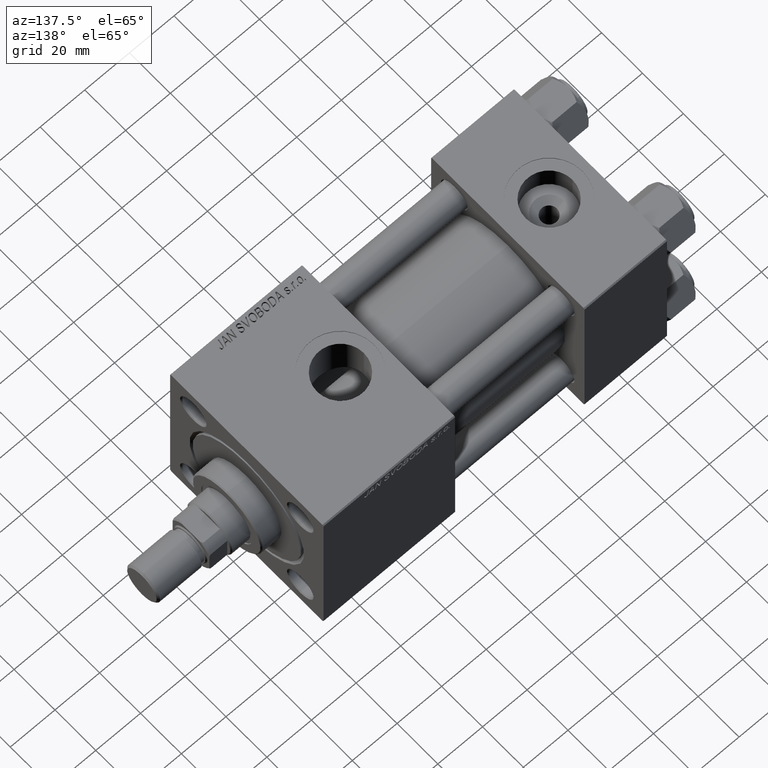
[diagram: clean part render]
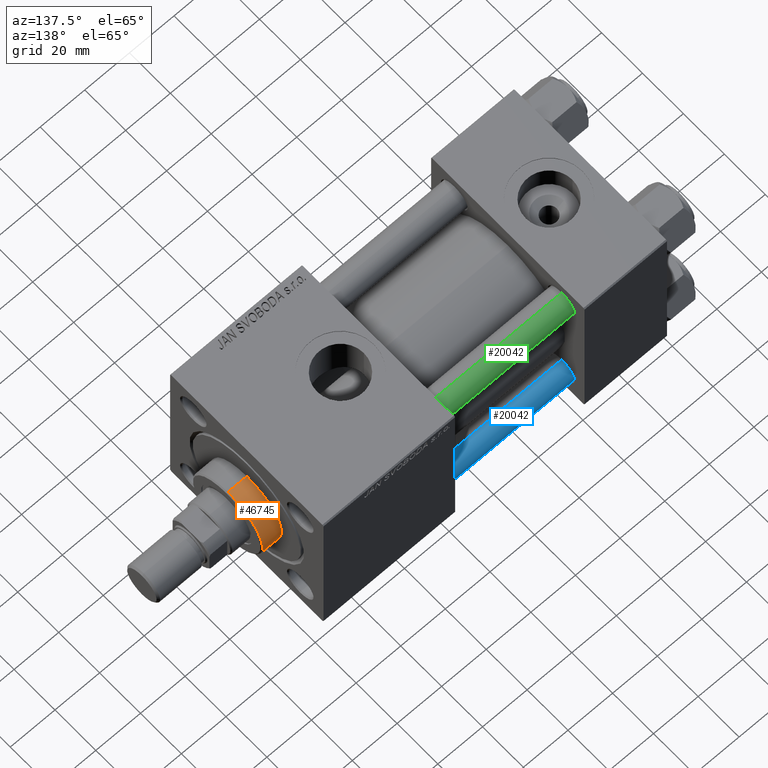
[diagram: same view with three faces highlighted in distinct colors, each labeled with its STEP entity id]
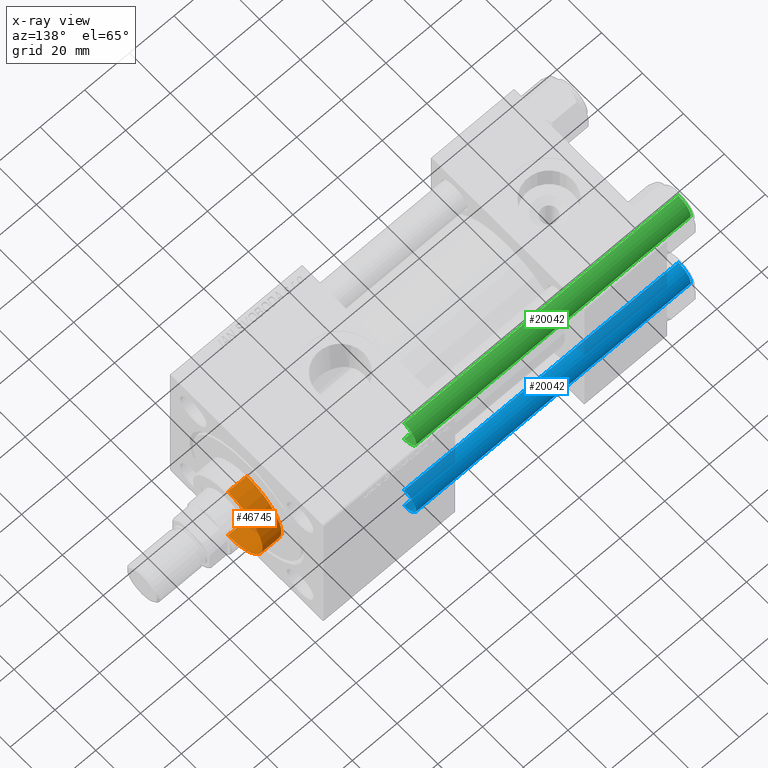
[diagram: x-ray of the same camera — body ghosted, the three highlighted faces saturated]
A machine part, auxiliary view with three faces highlighted in distinct colors.
The next image is the same camera in x-ray (body ghosted, the three faces saturated) — at least one of them is partly hidden behind the body in this view.
Their STEP definitions:

[orange] entity #46745 — the highlighted cylindrical surface (partial cylindrical patch) has radius 17 mm, axis along (-1, -0, 0).
#105 = ORIENTED_EDGE ( 'NONE', *, *, #29137, .T. ) ;
#569 = DIRECTION ( 'NONE',  ( 1.000000000000000000, 0.000000000000000000, 0.000000000000000000 ) ) ;
#750 = DIRECTION ( 'NONE',  ( -0.000000000000000000, -0.000000000000000000, -1.000000000000000000 ) ) ;
#1244 = DIRECTION ( 'NONE',  ( 1.000000000000000000, 0.000000000000000000, 0.000000000000000000 ) ) ;
#5039 = CIRCLE ( 'NONE', #16495, 17.00000000000000000 ) ;
#6780 = VERTEX_POINT ( 'NONE', #26165 ) ;
#8702 = CYLINDRICAL_SURFACE ( 'NONE', #29199, 17.00000000000000000 ) ;
#9458 = DIRECTION ( 'NONE',  ( 0.000000000000000000, 0.000000000000000000, 1.000000000000000000 ) ) ;
#13942 = EDGE_CURVE ( 'NONE', #19652, #38908, #35122, .T. ) ;
#14269 = CARTESIAN_POINT ( 'NONE',  ( 17.00000000000000000, 2.081899558550500280E-15, 28.69999999999999929 ) ) ;
#14761 = CARTESIAN_POINT ( 'NONE',  ( 17.00000000000000000, 2.081899558550500280E-15, 37.69999999999999574 ) ) ;
#16495 = AXIS2_PLACEMENT_3D ( 'NONE', #44518, #9458, #569 ) ;
#16646 = DIRECTION ( 'NONE',  ( 0.000000000000000000, 0.000000000000000000, -1.000000000000000000 ) ) ;
#19652 = VERTEX_POINT ( 'NONE', #46219 ) ;
#20243 = CARTESIAN_POINT ( 'NONE',  ( 0.000000000000000000, 0.000000000000000000, 37.19999999999999574 ) ) ;
#24604 = ORIENTED_EDGE ( 'NONE', *, *, #41470, .T. ) ;
#24819 = DIRECTION ( 'NONE',  ( -1.000000000000000000, 0.000000000000000000, 0.000000000000000000 ) ) ;
#25698 = ORIENTED_EDGE ( 'NONE', *, *, #29779, .F. ) ;
#26165 = CARTESIAN_POINT ( 'NONE',  ( -17.00000000000000000, 0.000000000000000000, 28.69999999999999929 ) ) ;
#29034 = CARTESIAN_POINT ( 'NONE',  ( -17.00000000000000000, 0.000000000000000000, 37.69999999999999574 ) ) ;
#29137 = EDGE_CURVE ( 'NONE', #49832, #6780, #5039, .T. ) ;
#29199 = AXIS2_PLACEMENT_3D ( 'NONE', #44018, #750, #24819 ) ;
#29779 = EDGE_CURVE ( 'NONE', #19652, #6780, #47760, .T. ) ;
#30203 = AXIS2_PLACEMENT_3D ( 'NONE', #20243, #16646, #1244 ) ;
#30681 = VECTOR ( 'NONE', #50624, 1000.000000000000000 ) ;
#30850 = EDGE_LOOP ( 'NONE', ( #45248, #24604, #105, #25698 ) ) ;
#32040 = VECTOR ( 'NONE', #40820, 1000.000000000000000 ) ;
#35122 = CIRCLE ( 'NONE', #30203, 17.00000000000000000 ) ;
#35475 = CARTESIAN_POINT ( 'NONE',  ( 17.00000000000000000, 2.081899558550500280E-15, 37.19999999999999574 ) ) ;
#38908 = VERTEX_POINT ( 'NONE', #35475 ) ;
#39690 = FACE_OUTER_BOUND ( 'NONE', #30850, .T. ) ;
#40820 = DIRECTION ( 'NONE',  ( -0.000000000000000000, -0.000000000000000000, -1.000000000000000000 ) ) ;
#41470 = EDGE_CURVE ( 'NONE', #38908, #49832, #49833, .T. ) ;
#44018 = CARTESIAN_POINT ( 'NONE',  ( 0.000000000000000000, 0.000000000000000000, 37.69999999999999574 ) ) ;
#44518 = CARTESIAN_POINT ( 'NONE',  ( 0.000000000000000000, 0.000000000000000000, 28.69999999999999929 ) ) ;
#45248 = ORIENTED_EDGE ( 'NONE', *, *, #13942, .T. ) ;
#46219 = CARTESIAN_POINT ( 'NONE',  ( -17.00000000000000000, 0.000000000000000000, 37.19999999999999574 ) ) ;
#46745 = ADVANCED_FACE ( 'NONE', ( #39690 ), #8702, .T. ) ;
#47760 = LINE ( 'NONE', #29034, #32040 ) ;
#49832 = VERTEX_POINT ( 'NONE', #14269 ) ;
#49833 = LINE ( 'NONE', #14761, #30681 ) ;
#50624 = DIRECTION ( 'NONE',  ( -0.000000000000000000, -0.000000000000000000, -1.000000000000000000 ) ) ;

[blue] entity #20042 — the highlighted cylindrical surface (edge-blend (fillet) strip) has radius 6 mm, axis along (1, -0, -0).
#1248 = DIRECTION ( 'NONE',  ( 1.000000000000000000, 0.000000000000000000, 0.000000000000000000 ) ) ;
#2070 = EDGE_CURVE ( 'NONE', #6748, #4056, #5459, .T. ) ;
#2363 = LINE ( 'NONE', #40286, #25196 ) ;
#3435 = AXIS2_PLACEMENT_3D ( 'NONE', #17132, #47609, #16385 ) ;
#4056 = VERTEX_POINT ( 'NONE', #5242 ) ;
#4584 = EDGE_CURVE ( 'NONE', #6748, #11788, #47198, .T. ) ;
#5242 = CARTESIAN_POINT ( 'NONE',  ( -6.000000000000000888, 0.000000000000000000, 0.4999999999999865663 ) ) ;
#5459 = LINE ( 'NONE', #36689, #26676 ) ;
#6556 = DIRECTION ( 'NONE',  ( 1.000000000000000000, 0.000000000000000000, 0.000000000000000000 ) ) ;
#6748 = VERTEX_POINT ( 'NONE', #10819 ) ;
#10819 = CARTESIAN_POINT ( 'NONE',  ( -6.000000000000000888, 0.000000000000000000, 123.5000000000000426 ) ) ;
#11788 = VERTEX_POINT ( 'NONE', #12785 ) ;
#12785 = CARTESIAN_POINT ( 'NONE',  ( 6.000000000000000888, 7.347880794884120722E-16, 123.5000000000000426 ) ) ;
#13294 = FACE_OUTER_BOUND ( 'NONE', #21789, .T. ) ;
#14617 = EDGE_CURVE ( 'NONE', #37449, #4056, #44101, .T. ) ;
#15008 = DIRECTION ( 'NONE',  ( -0.000000000000000000, -0.000000000000000000, 1.000000000000000000 ) ) ;
#16385 = DIRECTION ( 'NONE',  ( -1.000000000000000000, 0.000000000000000000, 0.000000000000000000 ) ) ;
#16900 = DIRECTION ( 'NONE',  ( 0.000000000000000000, 0.000000000000000000, -1.000000000000000000 ) ) ;
#17132 = CARTESIAN_POINT ( 'NONE',  ( 0.000000000000000000, 0.000000000000000000, 124.0000000000000000 ) ) ;
#18836 = ORIENTED_EDGE ( 'NONE', *, *, #48528, .T. ) ;
#20042 = ADVANCED_FACE ( 'NONE', ( #13294 ), #47360, .T. ) ;
#21789 = EDGE_LOOP ( 'NONE', ( #45627, #18836, #41213, #39761 ) ) ;
#25109 = AXIS2_PLACEMENT_3D ( 'NONE', #44523, #16900, #1248 ) ;
#25196 = VECTOR ( 'NONE', #41032, 1000.000000000000000 ) ;
#26676 = VECTOR ( 'NONE', #32855, 1000.000000000000000 ) ;
#32855 = DIRECTION ( 'NONE',  ( -0.000000000000000000, -0.000000000000000000, -1.000000000000000000 ) ) ;
#36689 = CARTESIAN_POINT ( 'NONE',  ( -6.000000000000000888, 0.000000000000000000, 124.0000000000000000 ) ) ;
#37449 = VERTEX_POINT ( 'NONE', #50445 ) ;
#39761 = ORIENTED_EDGE ( 'NONE', *, *, #2070, .F. ) ;
#40286 = CARTESIAN_POINT ( 'NONE',  ( 6.000000000000000888, 7.347880794884120722E-16, 124.0000000000000000 ) ) ;
#41032 = DIRECTION ( 'NONE',  ( -0.000000000000000000, -0.000000000000000000, -1.000000000000000000 ) ) ;
#41213 = ORIENTED_EDGE ( 'NONE', *, *, #14617, .T. ) ;
#44101 = CIRCLE ( 'NONE', #50677, 6.000000000000000888 ) ;
#44523 = CARTESIAN_POINT ( 'NONE',  ( 0.000000000000000000, 0.000000000000000000, 123.5000000000000426 ) ) ;
#45627 = ORIENTED_EDGE ( 'NONE', *, *, #4584, .T. ) ;
#45970 = CARTESIAN_POINT ( 'NONE',  ( 0.000000000000000000, 0.000000000000000000, 0.4999999999999865663 ) ) ;
#47198 = CIRCLE ( 'NONE', #25109, 6.000000000000000888 ) ;
#47360 = CYLINDRICAL_SURFACE ( 'NONE', #3435, 6.000000000000000888 ) ;
#47609 = DIRECTION ( 'NONE',  ( -0.000000000000000000, -0.000000000000000000, -1.000000000000000000 ) ) ;
#48528 = EDGE_CURVE ( 'NONE', #11788, #37449, #2363, .T. ) ;
#50445 = CARTESIAN_POINT ( 'NONE',  ( 6.000000000000000888, 7.347880794884120722E-16, 0.4999999999999865663 ) ) ;
#50677 = AXIS2_PLACEMENT_3D ( 'NONE', #45970, #15008, #6556 ) ;

[green] entity #20042 — the highlighted cylindrical surface (edge-blend (fillet) strip) has radius 6 mm, axis along (-1, -0, 0).
#1248 = DIRECTION ( 'NONE',  ( 1.000000000000000000, 0.000000000000000000, 0.000000000000000000 ) ) ;
#2070 = EDGE_CURVE ( 'NONE', #6748, #4056, #5459, .T. ) ;
#2363 = LINE ( 'NONE', #40286, #25196 ) ;
#3435 = AXIS2_PLACEMENT_3D ( 'NONE', #17132, #47609, #16385 ) ;
#4056 = VERTEX_POINT ( 'NONE', #5242 ) ;
#4584 = EDGE_CURVE ( 'NONE', #6748, #11788, #47198, .T. ) ;
#5242 = CARTESIAN_POINT ( 'NONE',  ( -6.000000000000000888, 0.000000000000000000, 0.4999999999999865663 ) ) ;
#5459 = LINE ( 'NONE', #36689, #26676 ) ;
#6556 = DIRECTION ( 'NONE',  ( 1.000000000000000000, 0.000000000000000000, 0.000000000000000000 ) ) ;
#6748 = VERTEX_POINT ( 'NONE', #10819 ) ;
#10819 = CARTESIAN_POINT ( 'NONE',  ( -6.000000000000000888, 0.000000000000000000, 123.5000000000000426 ) ) ;
#11788 = VERTEX_POINT ( 'NONE', #12785 ) ;
#12785 = CARTESIAN_POINT ( 'NONE',  ( 6.000000000000000888, 7.347880794884120722E-16, 123.5000000000000426 ) ) ;
#13294 = FACE_OUTER_BOUND ( 'NONE', #21789, .T. ) ;
#14617 = EDGE_CURVE ( 'NONE', #37449, #4056, #44101, .T. ) ;
#15008 = DIRECTION ( 'NONE',  ( -0.000000000000000000, -0.000000000000000000, 1.000000000000000000 ) ) ;
#16385 = DIRECTION ( 'NONE',  ( -1.000000000000000000, 0.000000000000000000, 0.000000000000000000 ) ) ;
#16900 = DIRECTION ( 'NONE',  ( 0.000000000000000000, 0.000000000000000000, -1.000000000000000000 ) ) ;
#17132 = CARTESIAN_POINT ( 'NONE',  ( 0.000000000000000000, 0.000000000000000000, 124.0000000000000000 ) ) ;
#18836 = ORIENTED_EDGE ( 'NONE', *, *, #48528, .T. ) ;
#20042 = ADVANCED_FACE ( 'NONE', ( #13294 ), #47360, .T. ) ;
#21789 = EDGE_LOOP ( 'NONE', ( #45627, #18836, #41213, #39761 ) ) ;
#25109 = AXIS2_PLACEMENT_3D ( 'NONE', #44523, #16900, #1248 ) ;
#25196 = VECTOR ( 'NONE', #41032, 1000.000000000000000 ) ;
#26676 = VECTOR ( 'NONE', #32855, 1000.000000000000000 ) ;
#32855 = DIRECTION ( 'NONE',  ( -0.000000000000000000, -0.000000000000000000, -1.000000000000000000 ) ) ;
#36689 = CARTESIAN_POINT ( 'NONE',  ( -6.000000000000000888, 0.000000000000000000, 124.0000000000000000 ) ) ;
#37449 = VERTEX_POINT ( 'NONE', #50445 ) ;
#39761 = ORIENTED_EDGE ( 'NONE', *, *, #2070, .F. ) ;
#40286 = CARTESIAN_POINT ( 'NONE',  ( 6.000000000000000888, 7.347880794884120722E-16, 124.0000000000000000 ) ) ;
#41032 = DIRECTION ( 'NONE',  ( -0.000000000000000000, -0.000000000000000000, -1.000000000000000000 ) ) ;
#41213 = ORIENTED_EDGE ( 'NONE', *, *, #14617, .T. ) ;
#44101 = CIRCLE ( 'NONE', #50677, 6.000000000000000888 ) ;
#44523 = CARTESIAN_POINT ( 'NONE',  ( 0.000000000000000000, 0.000000000000000000, 123.5000000000000426 ) ) ;
#45627 = ORIENTED_EDGE ( 'NONE', *, *, #4584, .T. ) ;
#45970 = CARTESIAN_POINT ( 'NONE',  ( 0.000000000000000000, 0.000000000000000000, 0.4999999999999865663 ) ) ;
#47198 = CIRCLE ( 'NONE', #25109, 6.000000000000000888 ) ;
#47360 = CYLINDRICAL_SURFACE ( 'NONE', #3435, 6.000000000000000888 ) ;
#47609 = DIRECTION ( 'NONE',  ( -0.000000000000000000, -0.000000000000000000, -1.000000000000000000 ) ) ;
#48528 = EDGE_CURVE ( 'NONE', #11788, #37449, #2363, .T. ) ;
#50445 = CARTESIAN_POINT ( 'NONE',  ( 6.000000000000000888, 7.347880794884120722E-16, 0.4999999999999865663 ) ) ;
#50677 = AXIS2_PLACEMENT_3D ( 'NONE', #45970, #15008, #6556 ) ;